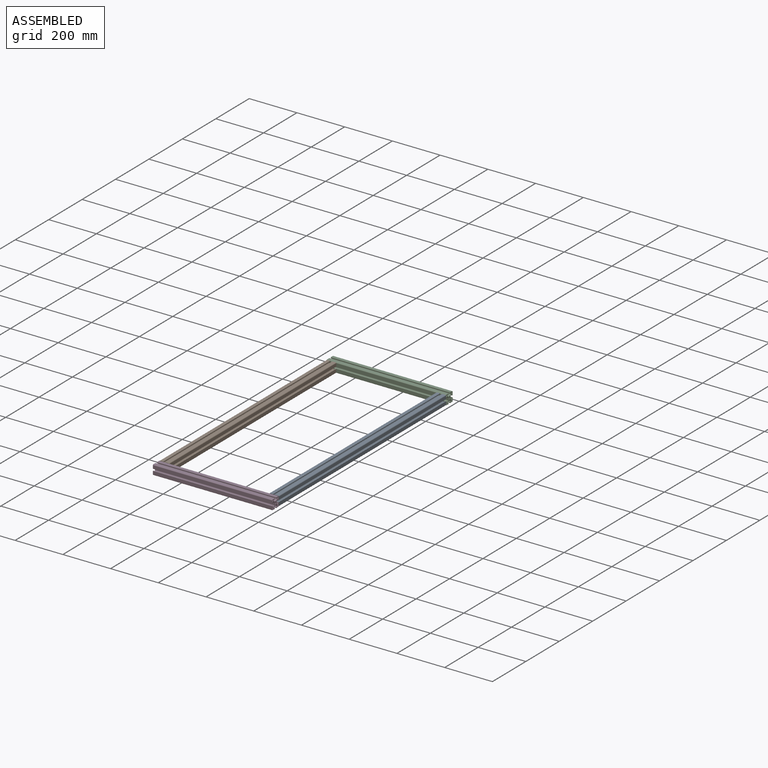
[diagram: assembled view]
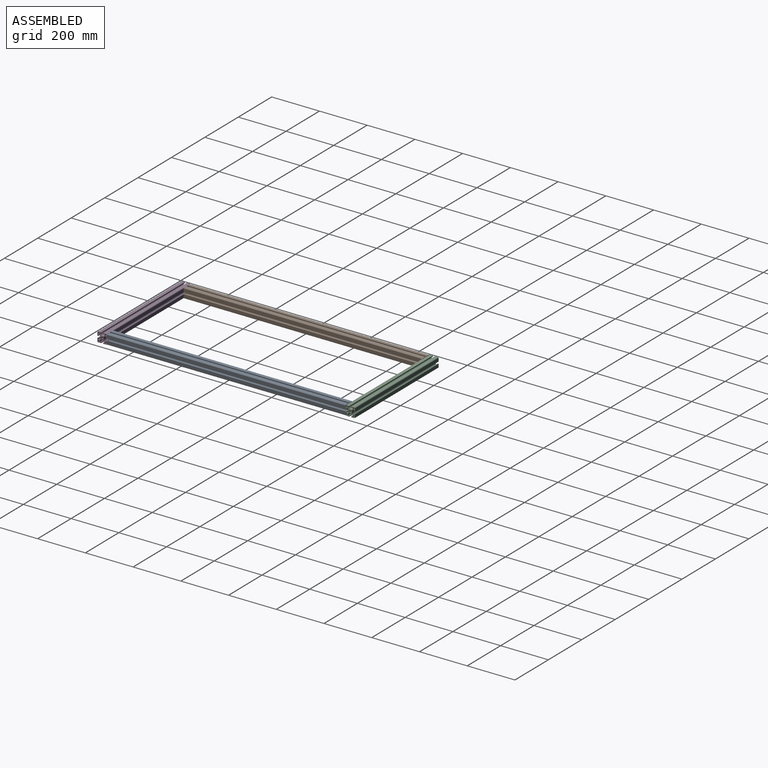
[diagram: assembled view, second angle]
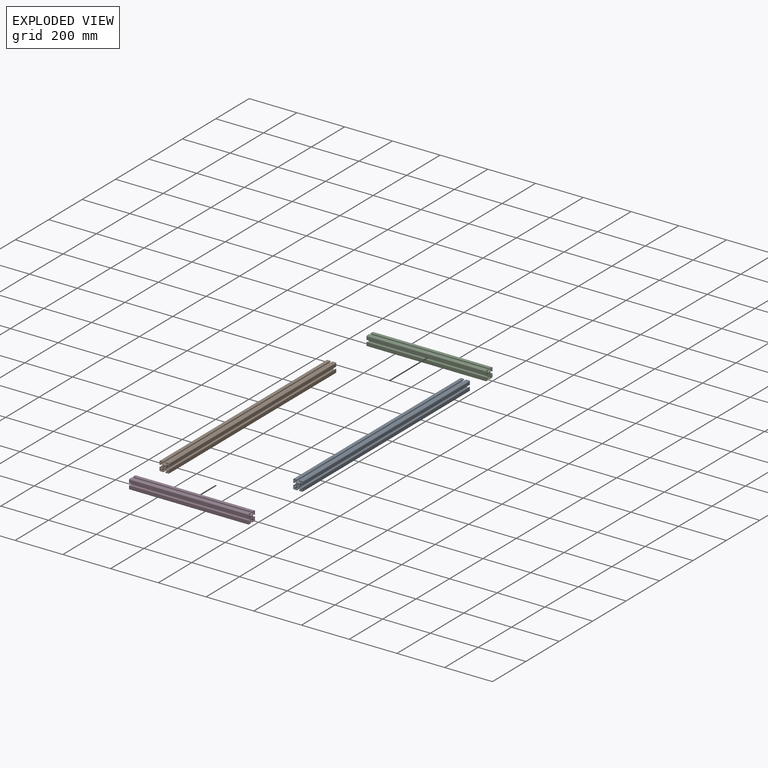
[diagram: exploded view]
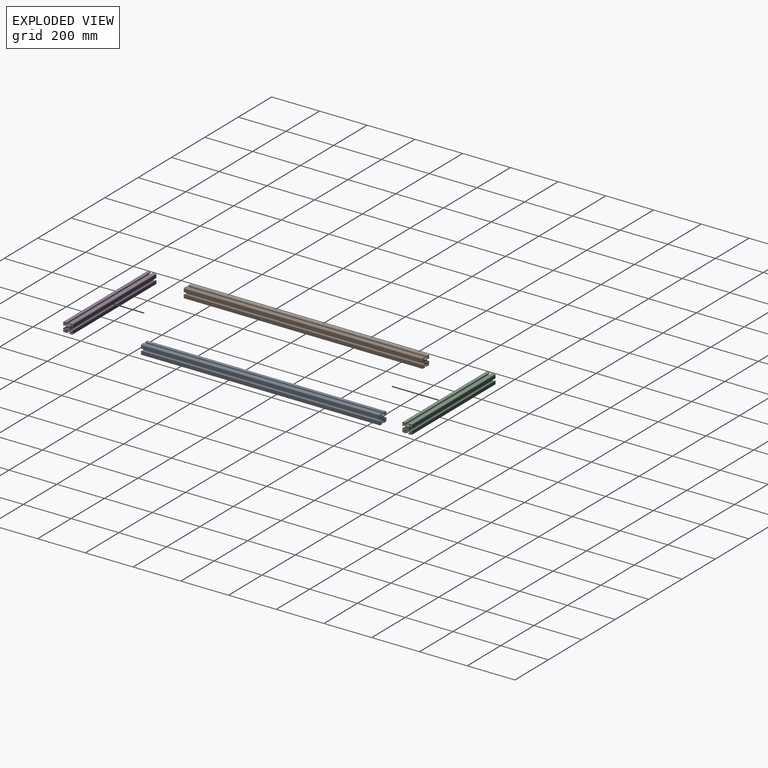
[diagram: exploded view, second angle]
ASSEMBLY  parts=4 mates=3
PART A: 154 faces, bbox 40x40x1000 mm
  f0: cylinder r=1mm len=1000mm, axis (0,0,-1), area 3141.6mm2, adj f1,f151,f152,f153
  f1: plane 1000x1.19mm, normal (-0.71,-0.71,0), area 1687.7mm2, adj f0,f2,f152,f153
  f2: cylinder r=3.7mm len=1000mm, axis (0,0,-1), area 3786.8mm2, adj f1,f3,f152,f153
  f3: plane 1000x1.19mm, normal (0.71,-0.71,0), area 1687.7mm2, adj f2,f4,f152,f153
  f4: cylinder r=1mm len=1000mm, axis (0,0,-1), area 3141.6mm2, adj f3,f5,f152,f153
  f5: plane 1000x1.19mm, normal (-0.71,0.71,0), area 1687.7mm2, adj f4,f6,f152,f153
  f6: cylinder r=3.7mm len=1000mm, axis (0,0,-1), area 3786.8mm2, adj f5,f7,f152,f153
  f7: plane 1000x1.19mm, normal (-0.71,-0.71,0), area 1687.7mm2, adj f6,f8,f152,f153
  f8: cylinder r=1mm len=1000mm, axis (0,0,-1), area 3141.6mm2, adj f7,f9,f152,f153
  f9: plane 1000x1.19mm, normal (0.71,0.71,0), area 1687.7mm2, adj f8,f10,f152,f153
  f10: cylinder r=3.7mm len=1000mm, axis (0,0,-1), area 3786.8mm2, adj f9,f11,f152,f153
  f11: plane 1000x1.19mm, normal (-0.71,0.71,0), area 1687.7mm2, adj f10,f12,f152,f153
  f12: cylinder r=1mm len=1000mm, axis (0,0,-1), area 3141.6mm2, adj f11,f13,f152,f153
  f13: plane 1000x1.19mm, normal (0.71,-0.71,0), area 1687.7mm2, adj f12,f14,f152,f153
  f14: cylinder r=3.7mm len=1000mm, axis (0,0,-1), area 3786.8mm2, adj f13,f151,f152,f153
  f15: plane 1000x4mm, normal (1,0,0), area 4000mm2, adj f16,f146,f152,f153
  f16: cylinder r=1.1mm len=1000mm, axis (0,0,-1), area 1727.9mm2, adj f15,f17,f152,f153
  f17: plane 1000x4mm, normal (0,-1,0), area 4000mm2, adj f16,f18,f152,f153
  f18: cylinder r=1.1mm len=1000mm, axis (0,0,-1), area 1727.9mm2, adj f17,f19,f152,f153
  f19: plane 1000x3.1mm, normal (-1,0,0), area 3100mm2, adj f18,f20,f152,f153
  f20: cylinder r=2mm len=1000mm, axis (0,0,-1), area 3141.6mm2, adj f19,f21,f152,f153
  f21: plane 1000x3.1mm, normal (0,1,0), area 3100mm2, adj f20,f146,f152,f153
  f22: plane 1000x12.9mm, normal (-1,0,0), area 12900mm2, adj f23,f147,f152,f153
  f23: plane 1000x3.5mm, normal (0,-1,0), area 3500mm2, adj f22,f24,f152,f153
  f24: cylinder r=0.5mm len=1000mm, axis (0,0,-1), area 785.4mm2, adj f23,f25,f152,f153
  f25: plane 1000x2.5mm, normal (1,0,0), area 2500mm2, adj f24,f26,f152,f153
  f26: plane 1000x1mm, normal (0,1,0), area 1000mm2, adj f25,f27,f152,f153
  f27: cylinder r=0.5mm len=1000mm, axis (0,0,-1), area 785.4mm2, adj f26,f28,f152,f153
  f28: plane 1000x0.95mm, normal (1,0,0), area 950mm2, adj f27,f29,f152,f153
  f29: cylinder r=1.45mm len=1000mm, axis (0,0,-1), area 2277.7mm2, adj f28,f30,f152,f153
  f30: plane 1000x2.83mm, normal (0,-1,0), area 2827.5mm2, adj f29,f31,f152,f153
  f31: cylinder r=3mm len=1000mm, axis (0,0,-1), area 2356.2mm2, adj f30,f32,f152,f153
  f32: plane 1000x2.72mm, normal (-0.71,-0.71,0), area 3850.3mm2, adj f31,f33,f152,f153
  f33: cylinder r=3mm len=1000mm, axis (0,0,-1), area 2356.2mm2, adj f32,f34,f152,f153
  f34: plane 1000x8.56mm, normal (-1,0,0), area 8554.9mm2, adj f33,f35,f152,f153
  f35: cylinder r=3mm len=1000mm, axis (0,0,-1), area 2356.2mm2, adj f34,f36,f152,f153
  f36: plane 1000x2.72mm, normal (-0.71,0.71,0), area 3850.3mm2, adj f35,f37,f152,f153
  f37: cylinder r=3mm len=1000mm, axis (0,0,-1), area 2356.2mm2, adj f36,f38,f152,f153
  f38: plane 1000x2.83mm, normal (0,1,0), area 2827.5mm2, adj f37,f39,f152,f153
  f39: cylinder r=1.45mm len=1000mm, axis (0,0,-1), area 2277.7mm2, adj f38,f40,f152,f153
  f40: plane 1000x0.95mm, normal (1,0,0), area 950mm2, adj f39,f41,f152,f153
  f41: cylinder r=0.5mm len=1000mm, axis (0,0,-1), area 785.4mm2, adj f40,f42,f152,f153
  f42: plane 1000x1mm, normal (0,-1,0), area 1000mm2, adj f41,f43,f152,f153
  f43: plane 1000x2.5mm, normal (1,0,0), area 2500mm2, adj f42,f44,f152,f153
  f44: cylinder r=0.5mm len=1000mm, axis (0,0,-1), area 785.4mm2, adj f43,f45,f152,f153
  f45: plane 1000x3.5mm, normal (0,1,0), area 3500mm2, adj f44,f46,f152,f153
  f46: plane 1000x12.9mm, normal (-1,0,0), area 12900mm2, adj f45,f47,f152,f153
  f47: cylinder r=3mm len=1000mm, axis (0,0,-1), area 4712.4mm2, adj f46,f48,f152,f153
  f48: plane 1000x12.9mm, normal (0,-1,0), area 12900mm2, adj f47,f49,f152,f153
  f49: plane 1000x3.5mm, normal (1,0,0), area 3500mm2, adj f48,f50,f152,f153
  f50: cylinder r=0.5mm len=1000mm, axis (0,0,-1), area 785.4mm2, adj f49,f51,f152,f153
  f51: plane 1000x2.5mm, normal (0,1,0), area 2500mm2, adj f50,f52,f152,f153
  f52: plane 1000x1mm, normal (-1,0,0), area 1000mm2, adj f51,f53,f152,f153
  f53: cylinder r=0.5mm len=1000mm, axis (0,0,-1), area 785.4mm2, adj f52,f54,f152,f153
  f54: plane 1000x0.95mm, normal (0,1,0), area 950mm2, adj f53,f55,f152,f153
  f55: cylinder r=1.45mm len=1000mm, axis (0,0,-1), area 2277.7mm2, adj f54,f56,f152,f153
  f56: plane 1000x2.83mm, normal (1,0,0), area 2827.5mm2, adj f55,f57,f152,f153
  f57: cylinder r=3mm len=1000mm, axis (0,0,-1), area 2356.2mm2, adj f56,f58,f152,f153
  f58: plane 1000x2.72mm, normal (0.71,-0.71,0), area 3850.3mm2, adj f57,f59,f152,f153
  f59: cylinder r=3mm len=1000mm, axis (0,0,-1), area 2356.2mm2, adj f58,f60,f152,f153
  f60: plane 1000x8.56mm, normal (0,-1,0), area 8554.9mm2, adj f59,f61,f152,f153
  f61: cylinder r=3mm len=1000mm, axis (0,0,-1), area 2356.2mm2, adj f60,f62,f152,f153
  f62: plane 1000x2.72mm, normal (-0.71,-0.71,0), area 3850.3mm2, adj f61,f63,f152,f153
  f63: cylinder r=3mm len=1000mm, axis (0,0,-1), area 2356.2mm2, adj f62,f64,f152,f153
  f64: plane 1000x2.83mm, normal (-1,0,0), area 2827.5mm2, adj f63,f65,f152,f153
  f65: cylinder r=1.45mm len=1000mm, axis (0,0,-1), area 2277.7mm2, adj f64,f66,f152,f153
  f66: plane 1000x0.95mm, normal (0,1,0), area 950mm2, adj f65,f67,f152,f153
  f67: cylinder r=0.5mm len=1000mm, axis (0,0,-1), area 785.4mm2, adj f66,f68,f152,f153
  f68: plane 1000x1mm, normal (1,0,0), area 1000mm2, adj f67,f69,f152,f153
  f69: plane 1000x2.5mm, normal (0,1,0), area 2500mm2, adj f68,f70,f152,f153
  f70: cylinder r=0.5mm len=1000mm, axis (0,0,-1), area 785.4mm2, adj f69,f71,f152,f153
  f71: plane 1000x3.5mm, normal (-1,0,0), area 3500mm2, adj f70,f72,f152,f153
  f72: plane 1000x12.9mm, normal (0,-1,0), area 12900mm2, adj f71,f73,f152,f153
  f73: cylinder r=3mm len=1000mm, axis (0,0,-1), area 4712.4mm2, adj f72,f74,f152,f153
  f74: plane 1000x12.9mm, normal (1,0,0), area 12900mm2, adj f73,f75,f152,f153
  f75: plane 1000x3.5mm, normal (0,1,0), area 3500mm2, adj f74,f76,f152,f153
  f76: cylinder r=0.5mm len=1000mm, axis (0,0,-1), area 785.4mm2, adj f75,f77,f152,f153
  f77: plane 1000x2.5mm, normal (-1,0,0), area 2500mm2, adj f76,f78,f152,f153
  f78: plane 1000x1mm, normal (0,-1,0), area 1000mm2, adj f77,f79,f152,f153
  f79: cylinder r=0.5mm len=1000mm, axis (0,0,-1), area 785.4mm2, adj f78,f80,f152,f153
  f80: plane 1000x0.95mm, normal (-1,0,0), area 950mm2, adj f79,f81,f152,f153
  f81: cylinder r=1.45mm len=1000mm, axis (0,0,-1), area 2277.7mm2, adj f80,f82,f152,f153
  f82: plane 1000x2.83mm, normal (0,1,0), area 2827.5mm2, adj f81,f83,f152,f153
  f83: cylinder r=3mm len=1000mm, axis (0,0,-1), area 2356.2mm2, adj f82,f84,f152,f153
  f84: plane 1000x2.72mm, normal (0.71,0.71,0), area 3850.3mm2, adj f83,f85,f152,f153
  f85: cylinder r=3mm len=1000mm, axis (0,0,-1), area 2356.2mm2, adj f84,f86,f152,f153
  f86: plane 1000x8.56mm, normal (1,0,0), area 8554.9mm2, adj f85,f87,f152,f153
  f87: cylinder r=3mm len=1000mm, axis (0,0,-1), area 2356.2mm2, adj f86,f88,f152,f153
  f88: plane 1000x2.72mm, normal (0.71,-0.71,0), area 3850.3mm2, adj f87,f89,f152,f153
  f89: cylinder r=3mm len=1000mm, axis (0,0,-1), area 2356.2mm2, adj f88,f90,f152,f153
  f90: plane 1000x2.83mm, normal (0,-1,0), area 2827.5mm2, adj f89,f91,f152,f153
  f91: cylinder r=1.45mm len=1000mm, axis (0,0,-1), area 2277.7mm2, adj f90,f92,f152,f153
  f92: plane 1000x0.95mm, normal (-1,0,0), area 950mm2, adj f91,f93,f152,f153
  f93: cylinder r=0.5mm len=1000mm, axis (0,0,-1), area 785.4mm2, adj f92,f94,f152,f153
  f94: plane 1000x1mm, normal (0,1,0), area 1000mm2, adj f93,f95,f152,f153
  f95: plane 1000x2.5mm, normal (-1,0,0), area 2500mm2, adj f94,f96,f152,f153
  f96: cylinder r=0.5mm len=1000mm, axis (0,0,-1), area 785.4mm2, adj f95,f97,f152,f153
  f97: plane 1000x3.5mm, normal (0,-1,0), area 3500mm2, adj f96,f98,f152,f153
  f98: plane 1000x12.9mm, normal (1,0,0), area 12900mm2, adj f97,f99,f152,f153
  f99: cylinder r=3mm len=1000mm, axis (0,0,-1), area 4712.4mm2, adj f98,f100,f152,f153
  f100: plane 1000x12.9mm, normal (0,1,0), area 12900mm2, adj f99,f101,f152,f153
  f101: plane 1000x3.5mm, normal (-1,0,0), area 3500mm2, adj f100,f102,f152,f153
  f102: cylinder r=0.5mm len=1000mm, axis (0,0,-1), area 785.4mm2, adj f101,f103,f152,f153
  f103: plane 1000x2.5mm, normal (0,-1,0), area 2500mm2, adj f102,f104,f152,f153
  f104: plane 1000x1mm, normal (1,0,0), area 1000mm2, adj f103,f105,f152,f153
  f105: cylinder r=0.5mm len=1000mm, axis (0,0,-1), area 785.4mm2, adj f104,f106,f152,f153
  f106: plane 1000x0.95mm, normal (0,-1,0), area 950mm2, adj f105,f107,f152,f153
  f107: cylinder r=1.45mm len=1000mm, axis (0,0,-1), area 2277.7mm2, adj f106,f108,f152,f153
  f108: plane 1000x2.83mm, normal (-1,0,0), area 2827.5mm2, adj f107,f109,f152,f153
  f109: cylinder r=3mm len=1000mm, axis (0,0,-1), area 2356.2mm2, adj f108,f110,f152,f153
  f110: plane 1000x2.72mm, normal (-0.71,0.71,0), area 3850.3mm2, adj f109,f111,f152,f153
  f111: cylinder r=3mm len=1000mm, axis (0,0,-1), area 2356.2mm2, adj f110,f112,f152,f153
  f112: plane 1000x8.56mm, normal (0,1,0), area 8554.9mm2, adj f111,f113,f152,f153
  f113: cylinder r=3mm len=1000mm, axis (0,0,-1), area 2356.2mm2, adj f112,f114,f152,f153
  f114: plane 1000x2.72mm, normal (0.71,0.71,0), area 3850.3mm2, adj f113,f115,f152,f153
  f115: cylinder r=3mm len=1000mm, axis (0,0,-1), area 2356.2mm2, adj f114,f116,f152,f153
  f116: plane 1000x2.83mm, normal (1,0,0), area 2827.5mm2, adj f115,f117,f152,f153
  f117: cylinder r=1.45mm len=1000mm, axis (0,0,-1), area 2277.7mm2, adj f116,f118,f152,f153
  f118: plane 1000x0.95mm, normal (0,-1,0), area 950mm2, adj f117,f119,f152,f153
  f119: cylinder r=0.5mm len=1000mm, axis (0,0,-1), area 785.4mm2, adj f118,f120,f152,f153
  f120: plane 1000x1mm, normal (-1,0,0), area 1000mm2, adj f119,f121,f152,f153
  f121: plane 1000x2.5mm, normal (0,-1,0), area 2500mm2, adj f120,f122,f152,f153
  f122: cylinder r=0.5mm len=1000mm, axis (0,0,-1), area 785.4mm2, adj f121,f123,f152,f153
  f123: plane 1000x3.5mm, normal (1,0,0), area 3500mm2, adj f122,f124,f152,f153
  f124: plane 1000x12.9mm, normal (0,1,0), area 12900mm2, adj f123,f147,f152,f153
  f125: plane 1000x4mm, normal (0,-1,0), area 4000mm2, adj f126,f148,f152,f153
  f126: cylinder r=1.1mm len=1000mm, axis (0,0,-1), area 1727.9mm2, adj f125,f127,f152,f153
  f127: plane 1000x4mm, normal (-1,0,0), area 4000mm2, adj f126,f128,f152,f153
  f128: cylinder r=1.1mm len=1000mm, axis (0,0,-1), area 1727.9mm2, adj f127,f129,f152,f153
  f129: plane 1000x3.1mm, normal (0,1,0), area 3100mm2, adj f128,f130,f152,f153
  f130: cylinder r=2mm len=1000mm, axis (0,0,-1), area 3141.6mm2, adj f129,f131,f152,f153
  f131: plane 1000x3.1mm, normal (1,0,0), area 3100mm2, adj f130,f148,f152,f153
  f132: plane 1000x4mm, normal (1,0,0), area 4000mm2, adj f133,f149,f152,f153
  f133: cylinder r=1.1mm len=1000mm, axis (0,0,-1), area 1727.9mm2, adj f132,f134,f152,f153
  f134: plane 1000x3.1mm, normal (0,-1,0), area 3100mm2, adj f133,f135,f152,f153
  f135: cylinder r=2mm len=1000mm, axis (0,0,-1), area 3141.6mm2, adj f134,f136,f152,f153
  f136: plane 1000x3.1mm, normal (-1,0,0), area 3100mm2, adj f135,f137,f152,f153
  f137: cylinder r=1.1mm len=1000mm, axis (0,0,-1), area 1727.9mm2, adj f136,f138,f152,f153
  f138: plane 1000x4mm, normal (0,1,0), area 4000mm2, adj f137,f149,f152,f153
  f139: cylinder r=1.1mm len=1000mm, axis (0,0,-1), area 1727.9mm2, adj f140,f150,f152,f153
  f140: plane 1000x4mm, normal (-1,0,0), area 4000mm2, adj f139,f141,f152,f153
  f141: cylinder r=1.1mm len=1000mm, axis (0,0,-1), area 1727.9mm2, adj f140,f142,f152,f153
  f142: plane 1000x4mm, normal (0,1,0), area 4000mm2, adj f141,f143,f152,f153
  f143: cylinder r=1.1mm len=1000mm, axis (0,0,-1), area 1727.9mm2, adj f142,f144,f152,f153
  f144: plane 1000x3.1mm, normal (1,0,0), area 3100mm2, adj f143,f145,f152,f153
  f145: cylinder r=2mm len=1000mm, axis (0,0,-1), area 3141.6mm2, adj f144,f150,f152,f153
  f146: cylinder r=1.1mm len=1000mm, axis (0,0,-1), area 1727.9mm2, adj f15,f21,f152,f153
  f147: cylinder r=3mm len=1000mm, axis (0,0,-1), area 4712.4mm2, adj f22,f124,f152,f153
  f148: cylinder r=1.1mm len=1000mm, axis (0,0,-1), area 1727.9mm2, adj f125,f131,f152,f153
  f149: cylinder r=1.1mm len=1000mm, axis (0,0,-1), area 1727.9mm2, adj f132,f138,f152,f153
  f150: plane 1000x3.1mm, normal (0,-1,0), area 3100mm2, adj f139,f145,f152,f153
  f151: plane 1000x1.19mm, normal (0.71,0.71,0), area 1687.7mm2, adj f0,f14,f152,f153
  f152: plane 40x40mm, normal (0,0,1), area 624mm2, adj f0,f1,f2,f3,f4,f5,f6,f7
  f153: plane 40x40mm, normal (0,0,-1), area 624mm2, adj f0,f1,f2,f3,f4,f5,f6,f7
PART B: same geometry as A
PART C: 154 faces, bbox 40x40x500 mm
  f0: cylinder r=1mm len=500mm, axis (0,0,-1), area 1570.8mm2, adj f1,f151,f152,f153
  f1: plane 500x1.19mm, normal (-0.71,-0.71,0), area 843.8mm2, adj f0,f2,f152,f153
  f2: cylinder r=3.7mm len=500mm, axis (0,0,-1), area 1893.4mm2, adj f1,f3,f152,f153
  f3: plane 500x1.19mm, normal (0.71,-0.71,0), area 843.8mm2, adj f2,f4,f152,f153
  f4: cylinder r=1mm len=500mm, axis (0,0,-1), area 1570.8mm2, adj f3,f5,f152,f153
  f5: plane 500x1.19mm, normal (-0.71,0.71,0), area 843.8mm2, adj f4,f6,f152,f153
  f6: cylinder r=3.7mm len=500mm, axis (0,0,-1), area 1893.4mm2, adj f5,f7,f152,f153
  f7: plane 500x1.19mm, normal (-0.71,-0.71,0), area 843.8mm2, adj f6,f8,f152,f153
  f8: cylinder r=1mm len=500mm, axis (0,0,-1), area 1570.8mm2, adj f7,f9,f152,f153
  f9: plane 500x1.19mm, normal (0.71,0.71,0), area 843.8mm2, adj f8,f10,f152,f153
  f10: cylinder r=3.7mm len=500mm, axis (0,0,-1), area 1893.4mm2, adj f9,f11,f152,f153
  f11: plane 500x1.19mm, normal (-0.71,0.71,0), area 843.8mm2, adj f10,f12,f152,f153
  f12: cylinder r=1mm len=500mm, axis (0,0,-1), area 1570.8mm2, adj f11,f13,f152,f153
  f13: plane 500x1.19mm, normal (0.71,-0.71,0), area 843.8mm2, adj f12,f14,f152,f153
  f14: cylinder r=3.7mm len=500mm, axis (0,0,-1), area 1893.4mm2, adj f13,f151,f152,f153
  f15: plane 500x4mm, normal (1,0,0), area 2000mm2, adj f16,f146,f152,f153
  f16: cylinder r=1.1mm len=500mm, axis (0,0,-1), area 863.9mm2, adj f15,f17,f152,f153
  f17: plane 500x4mm, normal (0,-1,0), area 2000mm2, adj f16,f18,f152,f153
  f18: cylinder r=1.1mm len=500mm, axis (0,0,-1), area 863.9mm2, adj f17,f19,f152,f153
  f19: plane 500x3.1mm, normal (-1,0,0), area 1550mm2, adj f18,f20,f152,f153
  f20: cylinder r=2mm len=500mm, axis (0,0,-1), area 1570.8mm2, adj f19,f21,f152,f153
  f21: plane 500x3.1mm, normal (0,1,0), area 1550mm2, adj f20,f146,f152,f153
  f22: plane 500x12.9mm, normal (-1,0,0), area 6450mm2, adj f23,f147,f152,f153
  f23: plane 500x3.5mm, normal (0,-1,0), area 1750mm2, adj f22,f24,f152,f153
  f24: cylinder r=0.5mm len=500mm, axis (0,0,-1), area 392.7mm2, adj f23,f25,f152,f153
  f25: plane 500x2.5mm, normal (1,0,0), area 1250mm2, adj f24,f26,f152,f153
  f26: plane 500x1mm, normal (0,1,0), area 500mm2, adj f25,f27,f152,f153
  f27: cylinder r=0.5mm len=500mm, axis (0,0,-1), area 392.7mm2, adj f26,f28,f152,f153
  f28: plane 500x0.95mm, normal (1,0,0), area 475mm2, adj f27,f29,f152,f153
  f29: cylinder r=1.45mm len=500mm, axis (0,0,-1), area 1138.8mm2, adj f28,f30,f152,f153
  f30: plane 500x2.83mm, normal (0,-1,0), area 1413.7mm2, adj f29,f31,f152,f153
  f31: cylinder r=3mm len=500mm, axis (0,0,-1), area 1178.1mm2, adj f30,f32,f152,f153
  f32: plane 500x2.72mm, normal (-0.71,-0.71,0), area 1925.1mm2, adj f31,f33,f152,f153
  f33: cylinder r=3mm len=500mm, axis (0,0,-1), area 1178.1mm2, adj f32,f34,f152,f153
  f34: plane 500x8.56mm, normal (-1,0,0), area 4277.5mm2, adj f33,f35,f152,f153
  f35: cylinder r=3mm len=500mm, axis (0,0,-1), area 1178.1mm2, adj f34,f36,f152,f153
  f36: plane 500x2.72mm, normal (-0.71,0.71,0), area 1925.1mm2, adj f35,f37,f152,f153
  f37: cylinder r=3mm len=500mm, axis (0,0,-1), area 1178.1mm2, adj f36,f38,f152,f153
  f38: plane 500x2.83mm, normal (0,1,0), area 1413.7mm2, adj f37,f39,f152,f153
  f39: cylinder r=1.45mm len=500mm, axis (0,0,-1), area 1138.8mm2, adj f38,f40,f152,f153
  f40: plane 500x0.95mm, normal (1,0,0), area 475mm2, adj f39,f41,f152,f153
  f41: cylinder r=0.5mm len=500mm, axis (0,0,-1), area 392.7mm2, adj f40,f42,f152,f153
  f42: plane 500x1mm, normal (0,-1,0), area 500mm2, adj f41,f43,f152,f153
  f43: plane 500x2.5mm, normal (1,0,0), area 1250mm2, adj f42,f44,f152,f153
  f44: cylinder r=0.5mm len=500mm, axis (0,0,-1), area 392.7mm2, adj f43,f45,f152,f153
  f45: plane 500x3.5mm, normal (0,1,0), area 1750mm2, adj f44,f46,f152,f153
  f46: plane 500x12.9mm, normal (-1,0,0), area 6450mm2, adj f45,f47,f152,f153
  f47: cylinder r=3mm len=500mm, axis (0,0,-1), area 2356.2mm2, adj f46,f48,f152,f153
  f48: plane 500x12.9mm, normal (0,-1,0), area 6450mm2, adj f47,f49,f152,f153
  f49: plane 500x3.5mm, normal (1,0,0), area 1750mm2, adj f48,f50,f152,f153
  f50: cylinder r=0.5mm len=500mm, axis (0,0,-1), area 392.7mm2, adj f49,f51,f152,f153
  f51: plane 500x2.5mm, normal (0,1,0), area 1250mm2, adj f50,f52,f152,f153
  f52: plane 500x1mm, normal (-1,0,0), area 500mm2, adj f51,f53,f152,f153
  f53: cylinder r=0.5mm len=500mm, axis (0,0,-1), area 392.7mm2, adj f52,f54,f152,f153
  f54: plane 500x0.95mm, normal (0,1,0), area 475mm2, adj f53,f55,f152,f153
  f55: cylinder r=1.45mm len=500mm, axis (0,0,-1), area 1138.8mm2, adj f54,f56,f152,f153
  f56: plane 500x2.83mm, normal (1,0,0), area 1413.7mm2, adj f55,f57,f152,f153
  f57: cylinder r=3mm len=500mm, axis (0,0,-1), area 1178.1mm2, adj f56,f58,f152,f153
  f58: plane 500x2.72mm, normal (0.71,-0.71,0), area 1925.1mm2, adj f57,f59,f152,f153
  f59: cylinder r=3mm len=500mm, axis (0,0,-1), area 1178.1mm2, adj f58,f60,f152,f153
  f60: plane 500x8.56mm, normal (0,-1,0), area 4277.5mm2, adj f59,f61,f152,f153
  f61: cylinder r=3mm len=500mm, axis (0,0,-1), area 1178.1mm2, adj f60,f62,f152,f153
  f62: plane 500x2.72mm, normal (-0.71,-0.71,0), area 1925.1mm2, adj f61,f63,f152,f153
  f63: cylinder r=3mm len=500mm, axis (0,0,-1), area 1178.1mm2, adj f62,f64,f152,f153
  f64: plane 500x2.83mm, normal (-1,0,0), area 1413.7mm2, adj f63,f65,f152,f153
  f65: cylinder r=1.45mm len=500mm, axis (0,0,-1), area 1138.8mm2, adj f64,f66,f152,f153
  f66: plane 500x0.95mm, normal (0,1,0), area 475mm2, adj f65,f67,f152,f153
  f67: cylinder r=0.5mm len=500mm, axis (0,0,-1), area 392.7mm2, adj f66,f68,f152,f153
  f68: plane 500x1mm, normal (1,0,0), area 500mm2, adj f67,f69,f152,f153
  f69: plane 500x2.5mm, normal (0,1,0), area 1250mm2, adj f68,f70,f152,f153
  f70: cylinder r=0.5mm len=500mm, axis (0,0,-1), area 392.7mm2, adj f69,f71,f152,f153
  f71: plane 500x3.5mm, normal (-1,0,0), area 1750mm2, adj f70,f72,f152,f153
  f72: plane 500x12.9mm, normal (0,-1,0), area 6450mm2, adj f71,f73,f152,f153
  f73: cylinder r=3mm len=500mm, axis (0,0,-1), area 2356.2mm2, adj f72,f74,f152,f153
  f74: plane 500x12.9mm, normal (1,0,0), area 6450mm2, adj f73,f75,f152,f153
  f75: plane 500x3.5mm, normal (0,1,0), area 1750mm2, adj f74,f76,f152,f153
  f76: cylinder r=0.5mm len=500mm, axis (0,0,-1), area 392.7mm2, adj f75,f77,f152,f153
  f77: plane 500x2.5mm, normal (-1,0,0), area 1250mm2, adj f76,f78,f152,f153
  f78: plane 500x1mm, normal (0,-1,0), area 500mm2, adj f77,f79,f152,f153
  f79: cylinder r=0.5mm len=500mm, axis (0,0,-1), area 392.7mm2, adj f78,f80,f152,f153
  f80: plane 500x0.95mm, normal (-1,0,0), area 475mm2, adj f79,f81,f152,f153
  f81: cylinder r=1.45mm len=500mm, axis (0,0,-1), area 1138.8mm2, adj f80,f82,f152,f153
  f82: plane 500x2.83mm, normal (0,1,0), area 1413.7mm2, adj f81,f83,f152,f153
  f83: cylinder r=3mm len=500mm, axis (0,0,-1), area 1178.1mm2, adj f82,f84,f152,f153
  f84: plane 500x2.72mm, normal (0.71,0.71,0), area 1925.1mm2, adj f83,f85,f152,f153
  f85: cylinder r=3mm len=500mm, axis (0,0,-1), area 1178.1mm2, adj f84,f86,f152,f153
  f86: plane 500x8.56mm, normal (1,0,0), area 4277.5mm2, adj f85,f87,f152,f153
  f87: cylinder r=3mm len=500mm, axis (0,0,-1), area 1178.1mm2, adj f86,f88,f152,f153
  f88: plane 500x2.72mm, normal (0.71,-0.71,0), area 1925.1mm2, adj f87,f89,f152,f153
  f89: cylinder r=3mm len=500mm, axis (0,0,-1), area 1178.1mm2, adj f88,f90,f152,f153
  f90: plane 500x2.83mm, normal (0,-1,0), area 1413.7mm2, adj f89,f91,f152,f153
  f91: cylinder r=1.45mm len=500mm, axis (0,0,-1), area 1138.8mm2, adj f90,f92,f152,f153
  f92: plane 500x0.95mm, normal (-1,0,0), area 475mm2, adj f91,f93,f152,f153
  f93: cylinder r=0.5mm len=500mm, axis (0,0,-1), area 392.7mm2, adj f92,f94,f152,f153
  f94: plane 500x1mm, normal (0,1,0), area 500mm2, adj f93,f95,f152,f153
  f95: plane 500x2.5mm, normal (-1,0,0), area 1250mm2, adj f94,f96,f152,f153
  f96: cylinder r=0.5mm len=500mm, axis (0,0,-1), area 392.7mm2, adj f95,f97,f152,f153
  f97: plane 500x3.5mm, normal (0,-1,0), area 1750mm2, adj f96,f98,f152,f153
  f98: plane 500x12.9mm, normal (1,0,0), area 6450mm2, adj f97,f99,f152,f153
  f99: cylinder r=3mm len=500mm, axis (0,0,-1), area 2356.2mm2, adj f98,f100,f152,f153
  f100: plane 500x12.9mm, normal (0,1,0), area 6450mm2, adj f99,f101,f152,f153
  f101: plane 500x3.5mm, normal (-1,0,0), area 1750mm2, adj f100,f102,f152,f153
  f102: cylinder r=0.5mm len=500mm, axis (0,0,-1), area 392.7mm2, adj f101,f103,f152,f153
  f103: plane 500x2.5mm, normal (0,-1,0), area 1250mm2, adj f102,f104,f152,f153
  f104: plane 500x1mm, normal (1,0,0), area 500mm2, adj f103,f105,f152,f153
  f105: cylinder r=0.5mm len=500mm, axis (0,0,-1), area 392.7mm2, adj f104,f106,f152,f153
  f106: plane 500x0.95mm, normal (0,-1,0), area 475mm2, adj f105,f107,f152,f153
  f107: cylinder r=1.45mm len=500mm, axis (0,0,-1), area 1138.8mm2, adj f106,f108,f152,f153
  f108: plane 500x2.83mm, normal (-1,0,0), area 1413.7mm2, adj f107,f109,f152,f153
  f109: cylinder r=3mm len=500mm, axis (0,0,-1), area 1178.1mm2, adj f108,f110,f152,f153
  f110: plane 500x2.72mm, normal (-0.71,0.71,0), area 1925.1mm2, adj f109,f111,f152,f153
  f111: cylinder r=3mm len=500mm, axis (0,0,-1), area 1178.1mm2, adj f110,f112,f152,f153
  f112: plane 500x8.56mm, normal (0,1,0), area 4277.5mm2, adj f111,f113,f152,f153
  f113: cylinder r=3mm len=500mm, axis (0,0,-1), area 1178.1mm2, adj f112,f114,f152,f153
  f114: plane 500x2.72mm, normal (0.71,0.71,0), area 1925.1mm2, adj f113,f115,f152,f153
  f115: cylinder r=3mm len=500mm, axis (0,0,-1), area 1178.1mm2, adj f114,f116,f152,f153
  f116: plane 500x2.83mm, normal (1,0,0), area 1413.7mm2, adj f115,f117,f152,f153
  f117: cylinder r=1.45mm len=500mm, axis (0,0,-1), area 1138.8mm2, adj f116,f118,f152,f153
  f118: plane 500x0.95mm, normal (0,-1,0), area 475mm2, adj f117,f119,f152,f153
  f119: cylinder r=0.5mm len=500mm, axis (0,0,-1), area 392.7mm2, adj f118,f120,f152,f153
  f120: plane 500x1mm, normal (-1,0,0), area 500mm2, adj f119,f121,f152,f153
  f121: plane 500x2.5mm, normal (0,-1,0), area 1250mm2, adj f120,f122,f152,f153
  f122: cylinder r=0.5mm len=500mm, axis (0,0,-1), area 392.7mm2, adj f121,f123,f152,f153
  f123: plane 500x3.5mm, normal (1,0,0), area 1750mm2, adj f122,f124,f152,f153
  f124: plane 500x12.9mm, normal (0,1,0), area 6450mm2, adj f123,f147,f152,f153
  f125: plane 500x4mm, normal (0,-1,0), area 2000mm2, adj f126,f148,f152,f153
  f126: cylinder r=1.1mm len=500mm, axis (0,0,-1), area 863.9mm2, adj f125,f127,f152,f153
  f127: plane 500x4mm, normal (-1,0,0), area 2000mm2, adj f126,f128,f152,f153
  f128: cylinder r=1.1mm len=500mm, axis (0,0,-1), area 863.9mm2, adj f127,f129,f152,f153
  f129: plane 500x3.1mm, normal (0,1,0), area 1550mm2, adj f128,f130,f152,f153
  f130: cylinder r=2mm len=500mm, axis (0,0,-1), area 1570.8mm2, adj f129,f131,f152,f153
  f131: plane 500x3.1mm, normal (1,0,0), area 1550mm2, adj f130,f148,f152,f153
  f132: plane 500x4mm, normal (1,0,0), area 2000mm2, adj f133,f149,f152,f153
  f133: cylinder r=1.1mm len=500mm, axis (0,0,-1), area 863.9mm2, adj f132,f134,f152,f153
  f134: plane 500x3.1mm, normal (0,-1,0), area 1550mm2, adj f133,f135,f152,f153
  f135: cylinder r=2mm len=500mm, axis (0,0,-1), area 1570.8mm2, adj f134,f136,f152,f153
  f136: plane 500x3.1mm, normal (-1,0,0), area 1550mm2, adj f135,f137,f152,f153
  f137: cylinder r=1.1mm len=500mm, axis (0,0,-1), area 863.9mm2, adj f136,f138,f152,f153
  f138: plane 500x4mm, normal (0,1,0), area 2000mm2, adj f137,f149,f152,f153
  f139: cylinder r=1.1mm len=500mm, axis (0,0,-1), area 863.9mm2, adj f140,f150,f152,f153
  f140: plane 500x4mm, normal (-1,0,0), area 2000mm2, adj f139,f141,f152,f153
  f141: cylinder r=1.1mm len=500mm, axis (0,0,-1), area 863.9mm2, adj f140,f142,f152,f153
  f142: plane 500x4mm, normal (0,1,0), area 2000mm2, adj f141,f143,f152,f153
  f143: cylinder r=1.1mm len=500mm, axis (0,0,-1), area 863.9mm2, adj f142,f144,f152,f153
  f144: plane 500x3.1mm, normal (1,0,0), area 1550mm2, adj f143,f145,f152,f153
  f145: cylinder r=2mm len=500mm, axis (0,0,-1), area 1570.8mm2, adj f144,f150,f152,f153
  f146: cylinder r=1.1mm len=500mm, axis (0,0,-1), area 863.9mm2, adj f15,f21,f152,f153
  f147: cylinder r=3mm len=500mm, axis (0,0,-1), area 2356.2mm2, adj f22,f124,f152,f153
  f148: cylinder r=1.1mm len=500mm, axis (0,0,-1), area 863.9mm2, adj f125,f131,f152,f153
  f149: cylinder r=1.1mm len=500mm, axis (0,0,-1), area 863.9mm2, adj f132,f138,f152,f153
  f150: plane 500x3.1mm, normal (0,-1,0), area 1550mm2, adj f139,f145,f152,f153
  f151: plane 500x1.19mm, normal (0.71,0.71,0), area 843.8mm2, adj f0,f14,f152,f153
  f152: plane 40x40mm, normal (0,0,1), area 624mm2, adj f0,f1,f2,f3,f4,f5,f6,f7
  f153: plane 40x40mm, normal (0,0,-1), area 624mm2, adj f0,f1,f2,f3,f4,f5,f6,f7
PART D: same geometry as C
PLACE A rot(axis=(-1,0,0),90deg) t=(185.43,-486.16,219.01)mm
PLACE B rot(axis=(-1,0,0),90deg) t=(-274.57,-486.16,219.01)mm
PLACE C rot(axis=(0,1,0),90deg) t=(-294.57,533.84,219.01)mm
PLACE D rot(axis=(0,1,0),90deg) t=(-294.57,-506.16,219.01)mm fixed
MATE fastened C.f48 <-> A.f14  axis (0,-1,0) through (185.43,513.84,219.01)mm
MATE fastened D.f100 <-> A.f2  axis (0,1,0) through (185.43,-486.16,219.01)mm
MATE fastened D.f100 <-> B.f2  axis (0,1,0) through (-274.57,-486.16,219.01)mm
